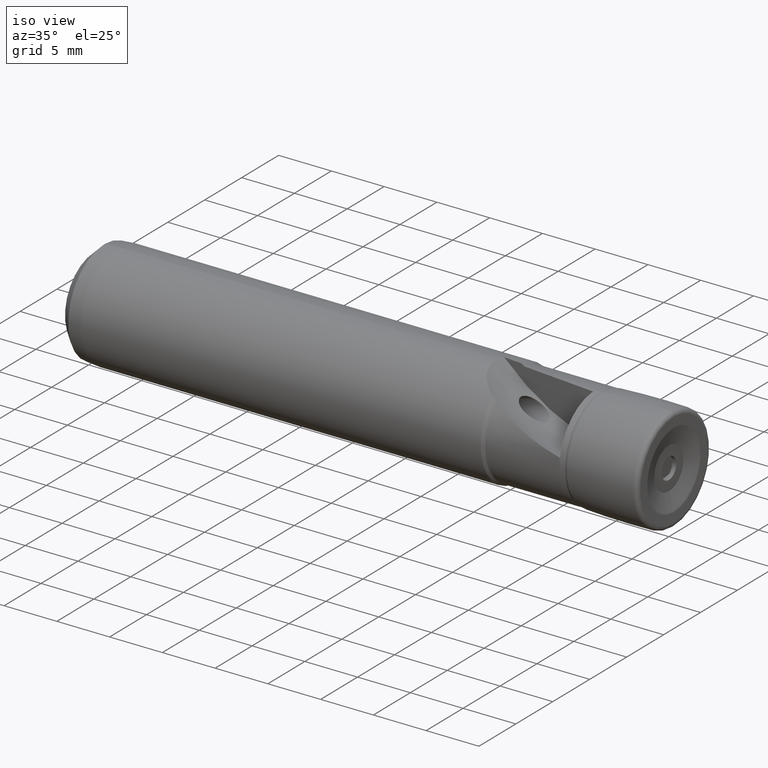
[diagram: clean part render]
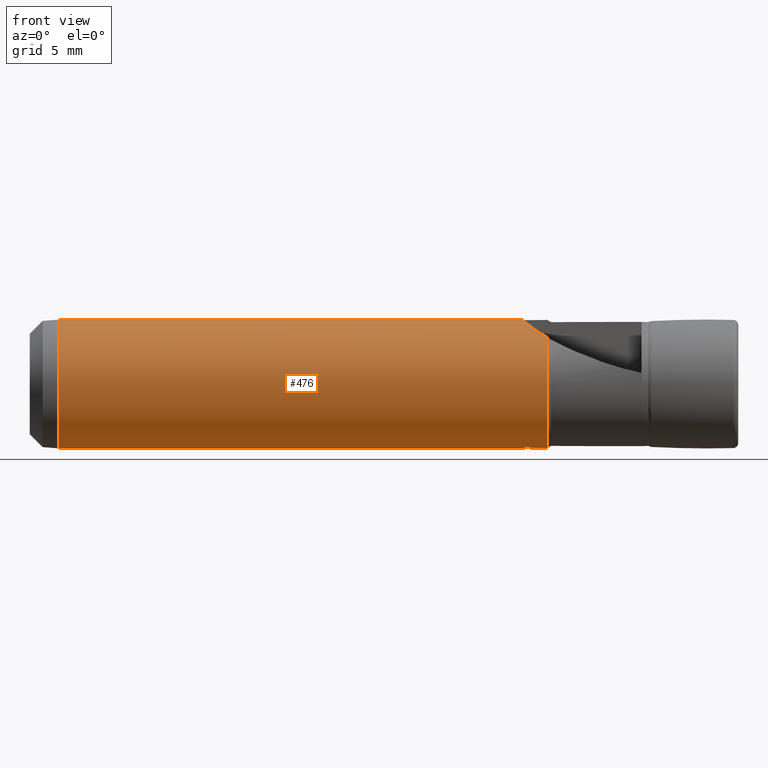
[diagram: tour spotlight — one face highlighted and labeled with its STEP entity id]
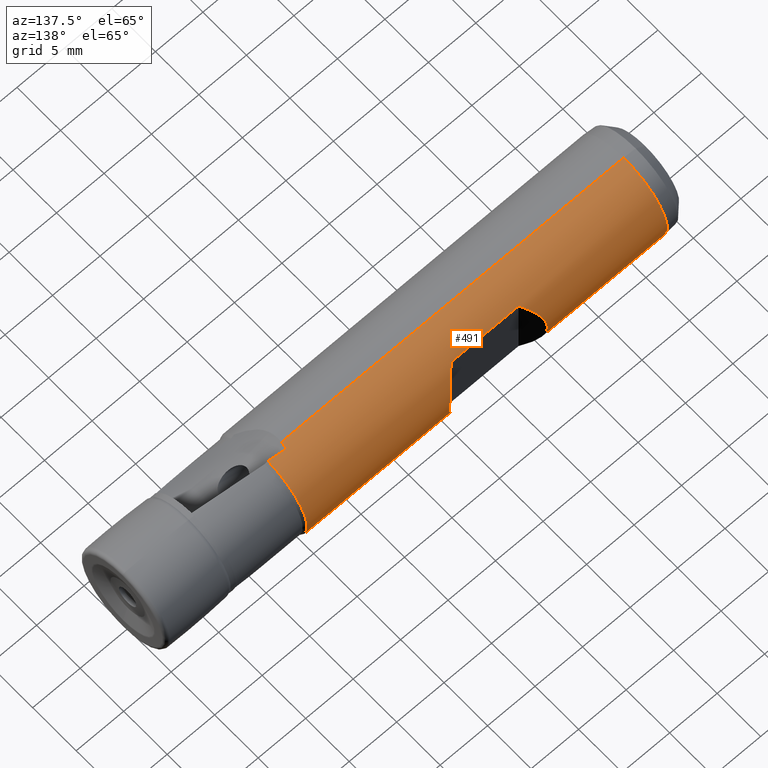
[diagram: tour spotlight — one face highlighted and labeled with its STEP entity id]
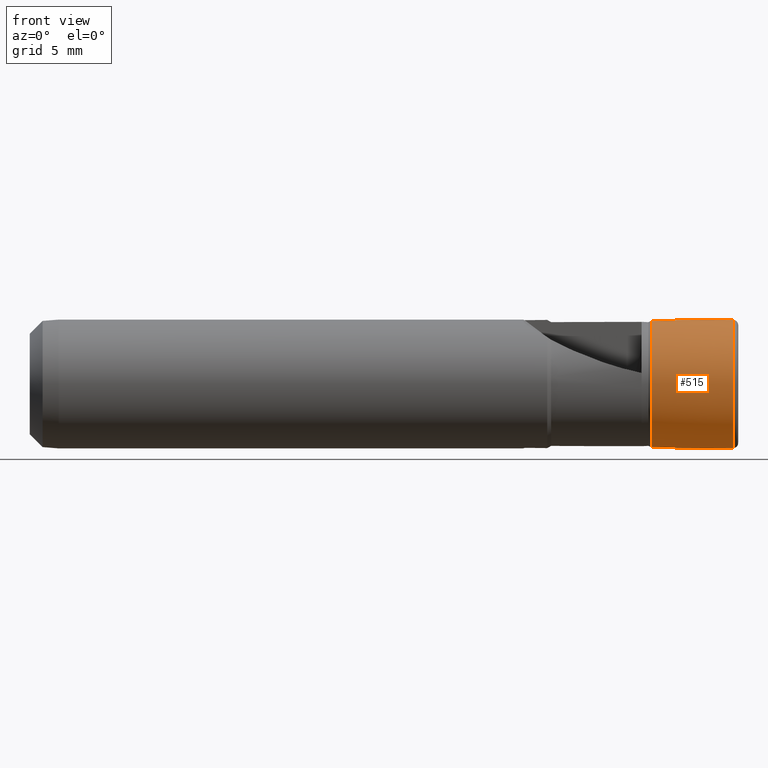
[diagram: tour spotlight — one face highlighted and labeled with its STEP entity id]
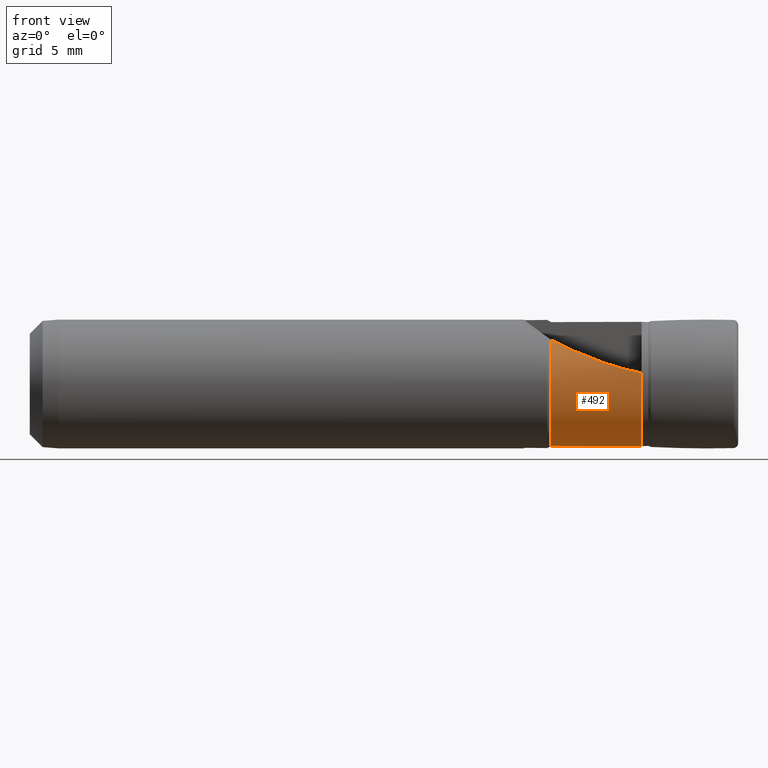
[diagram: tour spotlight — one face highlighted and labeled with its STEP entity id]
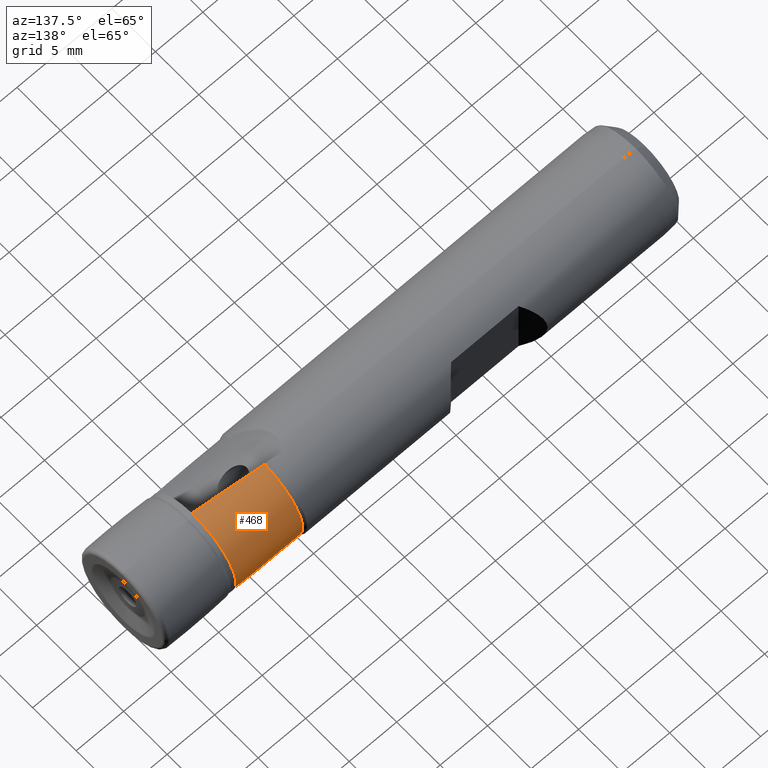
[diagram: tour spotlight — one face highlighted and labeled with its STEP entity id]
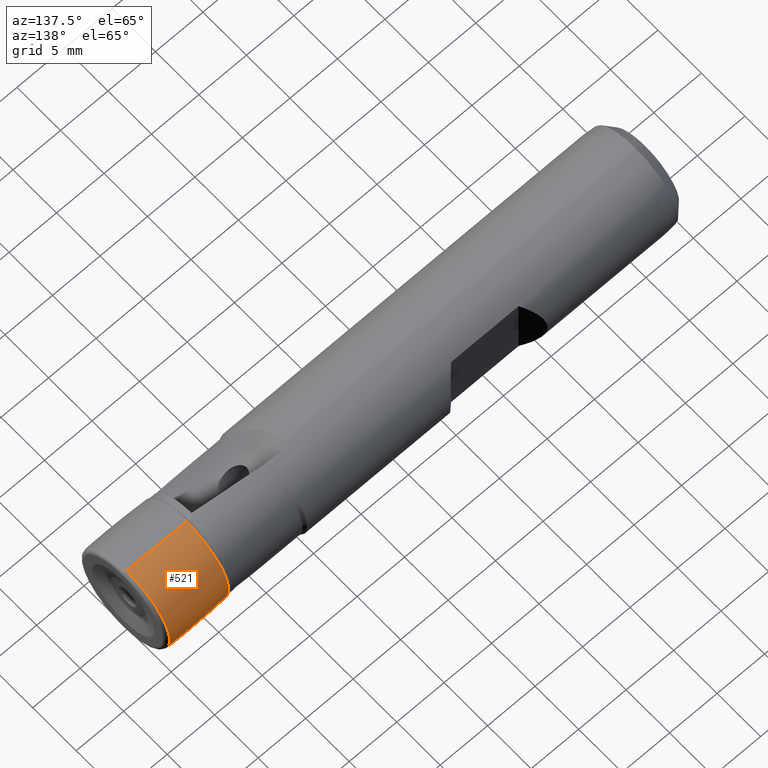
[diagram: tour spotlight — one face highlighted and labeled with its STEP entity id]
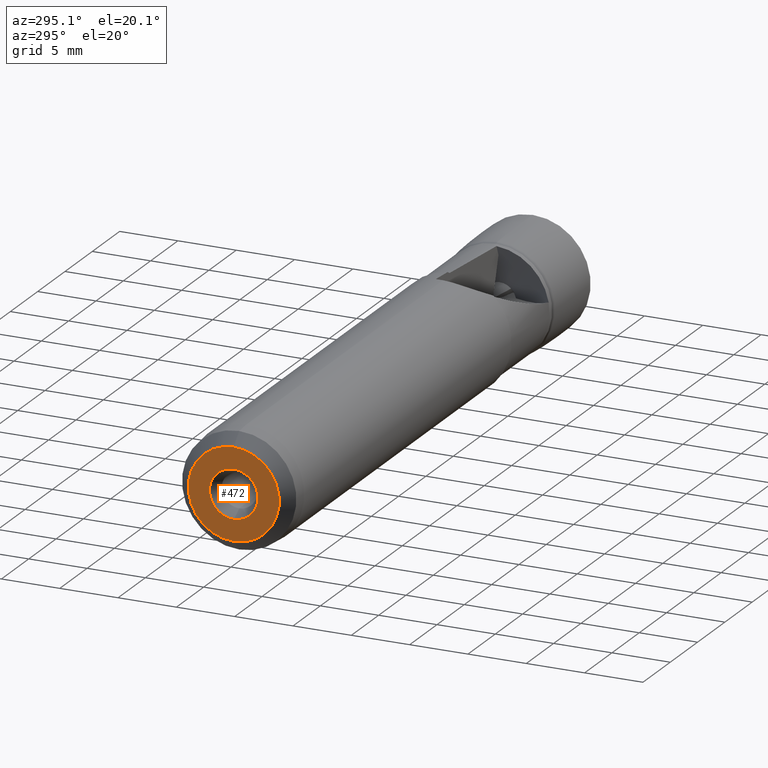
[diagram: tour spotlight — one face highlighted and labeled with its STEP entity id]
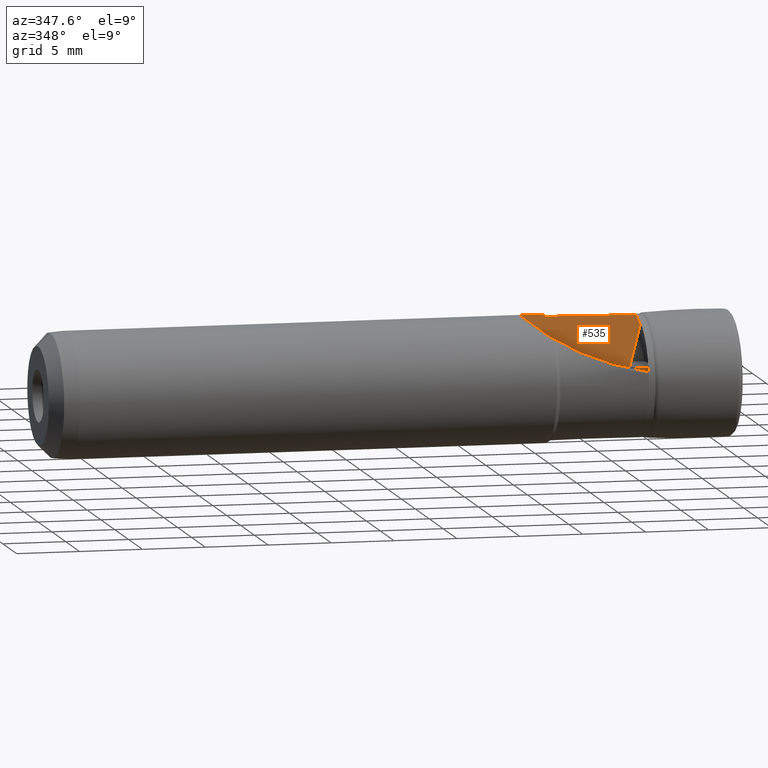
[diagram: tour spotlight — one face highlighted and labeled with its STEP entity id]
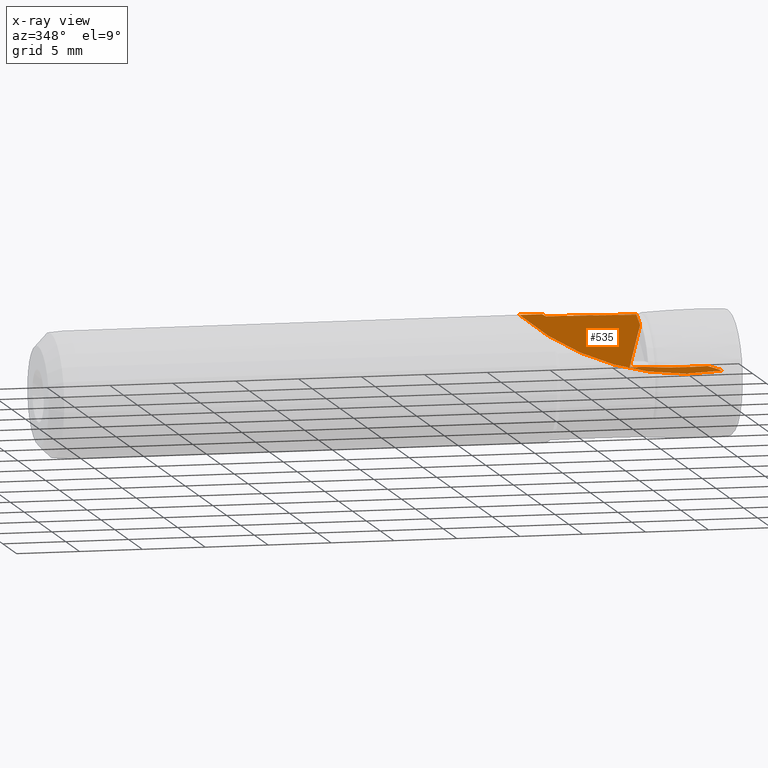
[diagram: x-ray of the same camera — body ghosted, this tour face saturated]
A machine part: a face-by-face anatomy tour. The part has 72 B-rep faces; the first image is the clean iso view, then the 8 largest visible faces are spotlighted one at a time (largest first), each with its STEP entity span.

Face 1 — front view, entity #476. In plain terms, the highlighted cylindrical surface (partial cylindrical patch) has radius 5 mm, axis along (1, -0, -0).
Definition (entity closure, byte-faithful):
#35 = EDGE_LOOP ( 'NONE', ( #2559, #2563, #2560, #2558, #2557, #2578, #2555, #2553 ) ) ;
#153 = VERTEX_POINT ( 'NONE', #979 ) ;
#161 = VERTEX_POINT ( 'NONE', #987 ) ;
#163 = VERTEX_POINT ( 'NONE', #989 ) ;
#168 = VERTEX_POINT ( 'NONE', #994 ) ;
#211 = VERTEX_POINT ( 'NONE', #1037 ) ;
#215 = VERTEX_POINT ( 'NONE', #1041 ) ;
#216 = VERTEX_POINT ( 'NONE', #1042 ) ;
#221 = VERTEX_POINT ( 'NONE', #1047 ) ;
#297 = AXIS2_PLACEMENT_3D ( 'NONE', #1953, #1954, #1955 ) ;
#309 = AXIS2_PLACEMENT_3D ( 'NONE', #1843, #1839, #1845 ) ;
#313 = CIRCLE ( 'NONE', #297, 4.999999999999995600 ) ;
#350 = EDGE_CURVE ( 'NONE', #161, #163, #1384, .T. ) ;
#356 = EDGE_CURVE ( 'NONE', #153, #168, #1414, .T. ) ;
#427 = EDGE_CURVE ( 'NONE', #211, #215, #1195, .T. ) ;
#430 = EDGE_CURVE ( 'NONE', #168, #211, #629, .T. ) ;
#446 = EDGE_CURVE ( 'NONE', #221, #163, #1175, .T. ) ;
#452 = EDGE_CURVE ( 'NONE', #216, #221, #1176, .T. ) ;
#461 = EDGE_CURVE ( 'NONE', #161, #153, #1283, .T. ) ;
#476 = ADVANCED_FACE ( 'NONE', ( #1842 ), #1841, .T. ) ;
#499 = EDGE_CURVE ( 'NONE', #215, #216, #313, .T. ) ;
#629 = B_SPLINE_CURVE_WITH_KNOTS ( 'NONE', 3,
 ( #1653, #1662, #1670, #1671 ),
 .UNSPECIFIED., .F., .F.,
 ( 4, 4 ),
 ( 0.001346858515786693300, 0.002030196299819929500 ),
 .UNSPECIFIED. ) ;
#979 = CARTESIAN_POINT ( 'NONE',  ( -52.24999999999996400, 0.0000000000000000000, -4.999999999999995600 ) ) ;
#987 = CARTESIAN_POINT ( 'NONE',  ( -52.24999999999996400, 6.123233995736761400E-016, 4.999999999999995600 ) ) ;
#989 = CARTESIAN_POINT ( 'NONE',  ( -16.20414531685863200, 7.175098985511016600E-014, 4.999999999999999100 ) ) ;
#994 = CARTESIAN_POINT ( 'NONE',  ( -16.20414531685863600, -7.113982745952536100E-014, -4.999999999999999100 ) ) ;
#1037 = CARTESIAN_POINT ( 'NONE',  ( -16.08015100946154500, -0.6745286124466840500, -4.954292194753108400 ) ) ;
#1041 = CARTESIAN_POINT ( 'NONE',  ( -14.32679491924310300, -0.4902434614358794400, -4.975908092852934700 ) ) ;
#1042 = CARTESIAN_POINT ( 'NONE',  ( -14.32679491924310800, -3.430299077992441600, 3.637725695475704200 ) ) ;
#1047 = CARTESIAN_POINT ( 'NONE',  ( -16.13224354872516000, -1.331012800178033500, 4.819585555393968200 ) ) ;
#1114 = CARTESIAN_POINT ( 'NONE',  ( -14.72365862748845400, -3.188104515926026000, 3.855813033448061600 ) ) ;
#1115 = CARTESIAN_POINT ( 'NONE',  ( -15.09460263889684100, -2.907586568762889500, 4.071516289851424600 ) ) ;
#1116 = CARTESIAN_POINT ( 'NONE',  ( -15.27196565482436200, -2.752474414805122100, 4.179036106910115400 ) ) ;
#1117 = CARTESIAN_POINT ( 'NONE',  ( -15.59574482208665600, -2.407891037067699800, 4.386629565010511400 ) ) ;
#1118 = CARTESIAN_POINT ( 'NONE',  ( -15.74085305431470500, -2.220458893502598800, 4.485731756782586300 ) ) ;
#1119 = CARTESIAN_POINT ( 'NONE',  ( -15.98332555359155400, -1.802001487320425300, 4.669584321033034300 ) ) ;
#1120 = CARTESIAN_POINT ( 'NONE',  ( -16.07772581079669600, -1.574734430628748700, 4.752277566754363700 ) ) ;
#1121 = CARTESIAN_POINT ( 'NONE',  ( -16.13224354872516000, -1.331012800178033500, 4.819585555393968200 ) ) ;
#1146 = CARTESIAN_POINT ( 'NONE',  ( -52.24999999999996400, 0.0000000000000000000, 0.0000000000000000000 ) ) ;
#1147 = DIRECTION ( 'NONE',  ( 1.000000000000000000, -0.0000000000000000000, -0.0000000000000000000 ) ) ;
#1148 = DIRECTION ( 'NONE',  ( 0.0000000000000000000, 0.0000000000000000000, -1.000000000000000000 ) ) ;
#1175 = B_SPLINE_CURVE_WITH_KNOTS ( 'NONE', 3,
 ( #1749, #1750, #1754, #1755, #1756, #1757 ),
 .UNSPECIFIED., .F., .F.,
 ( 4, 2, 4 ),
 ( 0.0000000000000000000, 0.0006734292578933646700, 0.001346858515786729300 ),
 .UNSPECIFIED. ) ;
#1176 = B_SPLINE_CURVE_WITH_KNOTS ( 'NONE', 3,
 ( #1791, #1790, #1114, #1115, #1116, #1117, #1118, #1119, #1120, #1121 ),
 .UNSPECIFIED., .F., .F.,
 ( 4, 2, 2, 2, 4 ),
 ( 0.0002621934704669767100, 0.001030916226422725200, 0.001799638982378473800, 0.002568361738334218800, 0.003337084494289963700 ),
 .UNSPECIFIED. ) ;
#1195 =( BOUNDED_CURVE ( )  B_SPLINE_CURVE ( 3, ( #1650, #1654, #1655, #1656 ),
 .UNSPECIFIED., .F., .T. ) 
 B_SPLINE_CURVE_WITH_KNOTS ( ( 4, 4 ),
 ( 4.577070665840139400, 4.614182505286455800 ),
 .UNSPECIFIED. ) 
 CURVE ( )  GEOMETRIC_REPRESENTATION_ITEM ( )  RATIONAL_B_SPLINE_CURVE ( ( 1.000000000000000000, 0.9998852292409754500, 0.9998852292409754500, 1.000000000000000000 ) ) 
 REPRESENTATION_ITEM ( '' )  );
#1225 = AXIS2_PLACEMENT_3D ( 'NONE', #1146, #1147, #1148 ) ;
#1253 = VECTOR ( 'NONE', #1388, 1000.000000000000000 ) ;
#1283 = CIRCLE ( 'NONE', #1225, 4.999999999999995600 ) ;
#1335 = VECTOR ( 'NONE', #1417, 1000.000000000000000 ) ;
#1352 = CARTESIAN_POINT ( 'NONE',  ( 0.0000000000000000000, 6.123233995736761400E-016, 4.999999999999995600 ) ) ;
#1384 = LINE ( 'NONE', #1352, #1253 ) ;
#1388 = DIRECTION ( 'NONE',  ( 1.000000000000000000, -0.0000000000000000000, -0.0000000000000000000 ) ) ;
#1414 = LINE ( 'NONE', #1416, #1335 ) ;
#1416 = CARTESIAN_POINT ( 'NONE',  ( 0.0000000000000000000, 0.0000000000000000000, -4.999999999999995600 ) ) ;
#1417 = DIRECTION ( 'NONE',  ( 1.000000000000000000, -0.0000000000000000000, -0.0000000000000000000 ) ) ;
#1650 = CARTESIAN_POINT ( 'NONE',  ( -16.08015100946154500, -0.6745286124466840500, -4.954292194753108400 ) ) ;
#1653 = CARTESIAN_POINT ( 'NONE',  ( -16.20414531685863600, -7.113982745952536100E-014, -4.999999999999999100 ) ) ;
#1654 = CARTESIAN_POINT ( 'NONE',  ( -15.49700467487551900, -0.6132374629020428400, -4.962637006167534900 ) ) ;
#1655 = CARTESIAN_POINT ( 'NONE',  ( -14.91248555910016700, -0.5518020282403132100, -4.969843132586770900 ) ) ;
#1656 = CARTESIAN_POINT ( 'NONE',  ( -14.32679491924310300, -0.4902434614358794400, -4.975908092852934700 ) ) ;
#1662 = CARTESIAN_POINT ( 'NONE',  ( -16.18015795417793300, -0.2282245108382799100, -4.999999999999993800 ) ) ;
#1670 = CARTESIAN_POINT ( 'NONE',  ( -16.13859210282029000, -0.4530169619172957400, -4.984451083328588400 ) ) ;
#1671 = CARTESIAN_POINT ( 'NONE',  ( -16.08015100946154500, -0.6745286124466840500, -4.954292194753108400 ) ) ;
#1749 = CARTESIAN_POINT ( 'NONE',  ( -16.13224354872516000, -1.331012800178033500, 4.819585555393968200 ) ) ;
#1750 = CARTESIAN_POINT ( 'NONE',  ( -16.18025757576846500, -1.116366019146429300, 4.878864016121847900 ) ) ;
#1754 = CARTESIAN_POINT ( 'NONE',  ( -16.20990254017045000, -0.8979177473825068500, 4.923825272863483700 ) ) ;
#1755 = CARTESIAN_POINT ( 'NONE',  ( -16.23385971963920200, -0.4534277419826008800, 4.984447299506152600 ) ) ;
#1756 = CARTESIAN_POINT ( 'NONE',  ( -16.22778485827739200, -0.2249152125903278700, 4.999999999999997300 ) ) ;
#1757 = CARTESIAN_POINT ( 'NONE',  ( -16.20414531685863200, 7.175098985511016600E-014, 4.999999999999999100 ) ) ;
#1790 = CARTESIAN_POINT ( 'NONE',  ( -14.52890922734718300, -3.314498357538239000, 3.746923347487079300 ) ) ;
#1791 = CARTESIAN_POINT ( 'NONE',  ( -14.32679491924310800, -3.430299077992441600, 3.637725695475704200 ) ) ;
#1839 = DIRECTION ( 'NONE',  ( 1.000000000000000000, -0.0000000000000000000, -0.0000000000000000000 ) ) ;
#1841 = CYLINDRICAL_SURFACE ( 'NONE', #309, 4.999999999999995600 ) ;
#1842 = FACE_OUTER_BOUND ( 'NONE', #35, .T. ) ;
#1843 = CARTESIAN_POINT ( 'NONE',  ( 0.0000000000000000000, 0.0000000000000000000, 0.0000000000000000000 ) ) ;
#1845 = DIRECTION ( 'NONE',  ( 0.0000000000000000000, 0.0000000000000000000, -1.000000000000000000 ) ) ;
#1953 = CARTESIAN_POINT ( 'NONE',  ( -14.32679491924310300, 0.0000000000000000000, 0.0000000000000000000 ) ) ;
#1954 = DIRECTION ( 'NONE',  ( -1.000000000000000000, 0.0000000000000000000, 0.0000000000000000000 ) ) ;
#1955 = DIRECTION ( 'NONE',  ( 0.0000000000000000000, 0.0000000000000000000, 1.000000000000000000 ) ) ;
#2553 = ORIENTED_EDGE ( 'NONE', *, *, #446, .T. ) ;
#2555 = ORIENTED_EDGE ( 'NONE', *, *, #452, .T. ) ;
#2557 = ORIENTED_EDGE ( 'NONE', *, *, #427, .T. ) ;
#2558 = ORIENTED_EDGE ( 'NONE', *, *, #430, .T. ) ;
#2559 = ORIENTED_EDGE ( 'NONE', *, *, #350, .F. ) ;
#2560 = ORIENTED_EDGE ( 'NONE', *, *, #356, .T. ) ;
#2563 = ORIENTED_EDGE ( 'NONE', *, *, #461, .T. ) ;
#2578 = ORIENTED_EDGE ( 'NONE', *, *, #499, .T. ) ;

Face 2 — auxiliary view, entity #491. In plain terms, the highlighted cylindrical surface (partial cylindrical patch) has radius 5 mm, axis along (1, -0, -0).
Definition (entity closure, byte-faithful):
#85 = EDGE_LOOP ( 'NONE', ( #703, #698, #712, #717, #727, #713, #705, #702 ) ) ;
#87 = EDGE_LOOP ( 'NONE', ( #701, #714, #721, #723 ) ) ;
#151 = VERTEX_POINT ( 'NONE', #977 ) ;
#153 = VERTEX_POINT ( 'NONE', #979 ) ;
#155 = VERTEX_POINT ( 'NONE', #981 ) ;
#156 = VERTEX_POINT ( 'NONE', #982 ) ;
#158 = VERTEX_POINT ( 'NONE', #984 ) ;
#161 = VERTEX_POINT ( 'NONE', #987 ) ;
#163 = VERTEX_POINT ( 'NONE', #989 ) ;
#164 = VERTEX_POINT ( 'NONE', #990 ) ;
#165 = VERTEX_POINT ( 'NONE', #991 ) ;
#166 = VERTEX_POINT ( 'NONE', #992 ) ;
#167 = VERTEX_POINT ( 'NONE', #993 ) ;
#168 = VERTEX_POINT ( 'NONE', #994 ) ;
#312 = AXIS2_PLACEMENT_3D ( 'NONE', #1917, #1913, #1912 ) ;
#326 = B_SPLINE_CURVE_WITH_KNOTS ( 'NONE', 3,
 ( #1383, #1382, #1390, #1391 ),
 .UNSPECIFIED., .F., .F.,
 ( 4, 4 ),
 ( 0.001346858515786729300, 0.002030196299819931200 ),
 .UNSPECIFIED. ) ;
#327 = B_SPLINE_CURVE_WITH_KNOTS ( 'NONE', 3,
 ( #1396, #1397, #1402, #1403, #1404, #1405, #1406, #1407, #1408, #1409 ),
 .UNSPECIFIED., .F., .F.,
 ( 4, 2, 2, 2, 4 ),
 ( 2.528275725669959200E-007, 0.001538951075900114300, 0.002308300200063890500, 0.002692974762145776500, 0.003077649324227663000 ),
 .UNSPECIFIED. ) ;
#328 = B_SPLINE_CURVE_WITH_KNOTS ( 'NONE', 3,
 ( #1392, #1401, #1410, #1411, #1412, #1413 ),
 .UNSPECIFIED., .F., .F.,
 ( 4, 2, 4 ),
 ( 0.0000000000000000000, 0.0006734292578933466700, 0.001346858515786693300 ),
 .UNSPECIFIED. ) ;
#345 = EDGE_CURVE ( 'NONE', #151, #156, #1189, .T. ) ;
#346 = EDGE_CURVE ( 'NONE', #155, #151, #1370, .T. ) ;
#347 = EDGE_CURVE ( 'NONE', #158, #155, #1190, .T. ) ;
#348 = EDGE_CURVE ( 'NONE', #156, #158, #1376, .T. ) ;
#349 = EDGE_CURVE ( 'NONE', #153, #161, #1232, .T. ) ;
#350 = EDGE_CURVE ( 'NONE', #161, #163, #1384, .T. ) ;
#351 = EDGE_CURVE ( 'NONE', #163, #164, #326, .T. ) ;
#352 = EDGE_CURVE ( 'NONE', #164, #165, #1192, .T. ) ;
#353 = EDGE_CURVE ( 'NONE', #165, #166, #1330, .T. ) ;
#354 = EDGE_CURVE ( 'NONE', #166, #167, #327, .T. ) ;
#355 = EDGE_CURVE ( 'NONE', #167, #168, #328, .T. ) ;
#356 = EDGE_CURVE ( 'NONE', #153, #168, #1414, .T. ) ;
#491 = ADVANCED_FACE ( 'NONE', ( #1914, #1916 ), #1915, .T. ) ;
#698 = ORIENTED_EDGE ( 'NONE', *, *, #350, .T. ) ;
#701 = ORIENTED_EDGE ( 'NONE', *, *, #345, .F. ) ;
#702 = ORIENTED_EDGE ( 'NONE', *, *, #356, .F. ) ;
#703 = ORIENTED_EDGE ( 'NONE', *, *, #349, .T. ) ;
#705 = ORIENTED_EDGE ( 'NONE', *, *, #355, .T. ) ;
#712 = ORIENTED_EDGE ( 'NONE', *, *, #351, .T. ) ;
#713 = ORIENTED_EDGE ( 'NONE', *, *, #354, .T. ) ;
#714 = ORIENTED_EDGE ( 'NONE', *, *, #346, .F. ) ;
#717 = ORIENTED_EDGE ( 'NONE', *, *, #352, .T. ) ;
#721 = ORIENTED_EDGE ( 'NONE', *, *, #347, .F. ) ;
#723 = ORIENTED_EDGE ( 'NONE', *, *, #348, .F. ) ;
#727 = ORIENTED_EDGE ( 'NONE', *, *, #353, .T. ) ;
#977 = CARTESIAN_POINT ( 'NONE',  ( -30.95000000000000600, 3.400000000000003000, 3.666060555964668800 ) ) ;
#979 = CARTESIAN_POINT ( 'NONE',  ( -52.24999999999996400, 0.0000000000000000000, -4.999999999999995600 ) ) ;
#981 = CARTESIAN_POINT ( 'NONE',  ( -38.04999999999999700, 3.399999999999999000, 3.666060555964667100 ) ) ;
#982 = CARTESIAN_POINT ( 'NONE',  ( -30.95000000000000600, 3.400000000000003000, -3.666060555964661700 ) ) ;
#984 = CARTESIAN_POINT ( 'NONE',  ( -38.04999999999999700, 3.400000000000003900, -3.666060555964665300 ) ) ;
#987 = CARTESIAN_POINT ( 'NONE',  ( -52.24999999999996400, 6.123233995736761400E-016, 4.999999999999995600 ) ) ;
#989 = CARTESIAN_POINT ( 'NONE',  ( -16.20414531685863200, 7.175098985511016600E-014, 4.999999999999999100 ) ) ;
#990 = CARTESIAN_POINT ( 'NONE',  ( -16.08015100946152400, 0.6745286124466470800, 4.954292194753096000 ) ) ;
#991 = CARTESIAN_POINT ( 'NONE',  ( -14.32679491924310300, 0.4902434614358449600, 4.975908092852938200 ) ) ;
#992 = CARTESIAN_POINT ( 'NONE',  ( -14.32679491924310800, 3.430299077992414500, -3.637725695475729500 ) ) ;
#993 = CARTESIAN_POINT ( 'NONE',  ( -16.13224354872516700, 1.331012800177998800, -4.819585555393978800 ) ) ;
#994 = CARTESIAN_POINT ( 'NONE',  ( -16.20414531685863600, -7.113982745952536100E-014, -4.999999999999999100 ) ) ;
#1189 =( BOUNDED_CURVE ( )  B_SPLINE_CURVE ( 3, ( #1366, #1371, #1372, #1373 ),
 .UNSPECIFIED., .F., .T. ) 
 B_SPLINE_CURVE_WITH_KNOTS ( ( 4, 4 ),
 ( 5.460151615044611400, 7.106218999314560100 ),
 .UNSPECIFIED. ) 
 CURVE ( )  GEOMETRIC_REPRESENTATION_ITEM ( )  RATIONAL_B_SPLINE_CURVE ( ( 1.000000000000000000, 0.7866666666666675100, 0.7866666666666675100, 1.000000000000000000 ) ) 
 REPRESENTATION_ITEM ( '' )  );
#1190 =( BOUNDED_CURVE ( )  B_SPLINE_CURVE ( 3, ( #1356, #1377, #1378, #1379 ),
 .UNSPECIFIED., .F., .T. ) 
 B_SPLINE_CURVE_WITH_KNOTS ( ( 4, 4 ),
 ( 2.318558961454818300, 3.964626345724768400 ),
 .UNSPECIFIED. ) 
 CURVE ( )  GEOMETRIC_REPRESENTATION_ITEM ( )  RATIONAL_B_SPLINE_CURVE ( ( 1.000000000000000000, 0.7866666666666670700, 0.7866666666666670700, 1.000000000000000000 ) ) 
 REPRESENTATION_ITEM ( '' )  );
#1192 =( BOUNDED_CURVE ( )  B_SPLINE_CURVE ( 3, ( #1389, #1393, #1394, #1395 ),
 .UNSPECIFIED., .F., .T. ) 
 B_SPLINE_CURVE_WITH_KNOTS ( ( 4, 4 ),
 ( 4.577070665840139400, 4.614182505286455800 ),
 .UNSPECIFIED. ) 
 CURVE ( )  GEOMETRIC_REPRESENTATION_ITEM ( )  RATIONAL_B_SPLINE_CURVE ( ( 1.000000000000000000, 0.9998852292409754500, 0.9998852292409754500, 1.000000000000000000 ) ) 
 REPRESENTATION_ITEM ( '' )  );
#1232 = CIRCLE ( 'NONE', #1252, 4.999999999999995600 ) ;
#1241 = VECTOR ( 'NONE', #1381, 1000.000000000000000 ) ;
#1247 = AXIS2_PLACEMENT_3D ( 'NONE', #1398, #1399, #1400 ) ;
#1252 = AXIS2_PLACEMENT_3D ( 'NONE', #1385, #1386, #1387 ) ;
#1253 = VECTOR ( 'NONE', #1388, 1000.000000000000000 ) ;
#1307 = VECTOR ( 'NONE', #1375, 1000.000000000000000 ) ;
#1330 = CIRCLE ( 'NONE', #1247, 4.999999999999995600 ) ;
#1335 = VECTOR ( 'NONE', #1417, 1000.000000000000000 ) ;
#1352 = CARTESIAN_POINT ( 'NONE',  ( 0.0000000000000000000, 6.123233995736761400E-016, 4.999999999999995600 ) ) ;
#1356 = CARTESIAN_POINT ( 'NONE',  ( -38.04999999999999700, 3.400000000000003900, -3.666060555964665300 ) ) ;
#1366 = CARTESIAN_POINT ( 'NONE',  ( -30.95000000000000600, 3.400000000000003000, 3.666060555964668800 ) ) ;
#1370 = LINE ( 'NONE', #1374, #1307 ) ;
#1371 = CARTESIAN_POINT ( 'NONE',  ( -28.67203389830511600, 5.677966101694906300, 1.553415489815537700 ) ) ;
#1372 = CARTESIAN_POINT ( 'NONE',  ( -28.67203389830511600, 5.677966101694906300, -1.553415489815531500 ) ) ;
#1373 = CARTESIAN_POINT ( 'NONE',  ( -30.95000000000000600, 3.400000000000003000, -3.666060555964661700 ) ) ;
#1374 = CARTESIAN_POINT ( 'NONE',  ( 4.153563252338835800E-016, 3.399999999999999000, 3.666060555964667100 ) ) ;
#1375 = DIRECTION ( 'NONE',  ( 1.000000000000000000, -0.0000000000000000000, -0.0000000000000000000 ) ) ;
#1376 = LINE ( 'NONE', #1380, #1241 ) ;
#1377 = CARTESIAN_POINT ( 'NONE',  ( -40.32796610169489800, 5.677966101694908100, -1.553415489815534100 ) ) ;
#1378 = CARTESIAN_POINT ( 'NONE',  ( -40.32796610169490500, 5.677966101694908100, 1.553415489815535500 ) ) ;
#1379 = CARTESIAN_POINT ( 'NONE',  ( -38.04999999999999700, 3.399999999999999000, 3.666060555964667100 ) ) ;
#1380 = CARTESIAN_POINT ( 'NONE',  ( 4.153563252338835800E-016, 3.399999999999999000, -3.666060555964667100 ) ) ;
#1381 = DIRECTION ( 'NONE',  ( -1.000000000000000000, 0.0000000000000000000, 0.0000000000000000000 ) ) ;
#1382 = CARTESIAN_POINT ( 'NONE',  ( -16.18015795417792500, 0.2282245108382672000, 4.999999999999993800 ) ) ;
#1383 = CARTESIAN_POINT ( 'NONE',  ( -16.20414531685863200, 7.175098985511016600E-014, 4.999999999999999100 ) ) ;
#1384 = LINE ( 'NONE', #1352, #1253 ) ;
#1385 = CARTESIAN_POINT ( 'NONE',  ( -52.24999999999996400, 0.0000000000000000000, 0.0000000000000000000 ) ) ;
#1386 = DIRECTION ( 'NONE',  ( 1.000000000000000000, -0.0000000000000000000, -0.0000000000000000000 ) ) ;
#1387 = DIRECTION ( 'NONE',  ( 0.0000000000000000000, 0.0000000000000000000, -1.000000000000000000 ) ) ;
#1388 = DIRECTION ( 'NONE',  ( 1.000000000000000000, -0.0000000000000000000, -0.0000000000000000000 ) ) ;
#1389 = CARTESIAN_POINT ( 'NONE',  ( -16.08015100946152400, 0.6745286124466470800, 4.954292194753096000 ) ) ;
#1390 = CARTESIAN_POINT ( 'NONE',  ( -16.13859210282028700, 0.4530169619172691500, 4.984451083328591100 ) ) ;
#1391 = CARTESIAN_POINT ( 'NONE',  ( -16.08015100946152400, 0.6745286124466470800, 4.954292194753096000 ) ) ;
#1392 = CARTESIAN_POINT ( 'NONE',  ( -16.13224354872516700, 1.331012800177998800, -4.819585555393978800 ) ) ;
#1393 = CARTESIAN_POINT ( 'NONE',  ( -15.49700467487551900, 0.6132374629020083100, 4.962637006167538400 ) ) ;
#1394 = CARTESIAN_POINT ( 'NONE',  ( -14.91248555910016700, 0.5518020282402784600, 4.969843132586774500 ) ) ;
#1395 = CARTESIAN_POINT ( 'NONE',  ( -14.32679491924310300, 0.4902434614358449600, 4.975908092852938200 ) ) ;
#1396 = CARTESIAN_POINT ( 'NONE',  ( -14.32679491924310800, 3.430299077992414500, -3.637725695475729500 ) ) ;
#1397 = CARTESIAN_POINT ( 'NONE',  ( -14.73252039428132300, 3.197840016795183700, -3.856929717452982400 ) ) ;
#1398 = CARTESIAN_POINT ( 'NONE',  ( -14.32679491924310300, 0.0000000000000000000, 0.0000000000000000000 ) ) ;
#1399 = DIRECTION ( 'NONE',  ( -1.000000000000000000, 0.0000000000000000000, 0.0000000000000000000 ) ) ;
#1400 = DIRECTION ( 'NONE',  ( 0.0000000000000000000, 0.0000000000000000000, 1.000000000000000000 ) ) ;
#1401 = CARTESIAN_POINT ( 'NONE',  ( -16.18025757576847200, 1.116366019146399500, -4.878864016121855100 ) ) ;
#1402 = CARTESIAN_POINT ( 'NONE',  ( -15.11025223861971900, 2.924746680965302700, -4.075321413190226700 ) ) ;
#1403 = CARTESIAN_POINT ( 'NONE',  ( -15.59655985713831000, 2.406939366117563300, -4.387167631854251400 ) ) ;
#1404 = CARTESIAN_POINT ( 'NONE',  ( -15.74141621539966500, 2.219511740276365800, -4.486154469064594300 ) ) ;
#1405 = CARTESIAN_POINT ( 'NONE',  ( -15.92253105975762200, 1.906907831349883700, -4.623489601385596600 ) ) ;
#1406 = CARTESIAN_POINT ( 'NONE',  ( -15.97700991748882200, 1.796619741518378000, -4.667620966039352800 ) ) ;
#1407 = CARTESIAN_POINT ( 'NONE',  ( -16.06808422984621700, 1.569624358845020700, -4.748769035270513000 ) ) ;
#1408 = CARTESIAN_POINT ( 'NONE',  ( -16.10508231251200000, 1.452437148044615900, -4.786052099165107900 ) ) ;
#1409 = CARTESIAN_POINT ( 'NONE',  ( -16.13224354872516700, 1.331012800177998800, -4.819585555393978800 ) ) ;
#1410 = CARTESIAN_POINT ( 'NONE',  ( -16.20990254017045700, 0.8979177473824826400, -4.923825272863488100 ) ) ;
#1411 = CARTESIAN_POINT ( 'NONE',  ( -16.23385971963920900, 0.4534277419825887800, -4.984447299506153500 ) ) ;
#1412 = CARTESIAN_POINT ( 'NONE',  ( -16.22778485827739600, 0.2249152125903211300, -4.999999999999997300 ) ) ;
#1413 = CARTESIAN_POINT ( 'NONE',  ( -16.20414531685863600, -7.113982745952536100E-014, -4.999999999999999100 ) ) ;
#1414 = LINE ( 'NONE', #1416, #1335 ) ;
#1416 = CARTESIAN_POINT ( 'NONE',  ( 0.0000000000000000000, 0.0000000000000000000, -4.999999999999995600 ) ) ;
#1417 = DIRECTION ( 'NONE',  ( 1.000000000000000000, -0.0000000000000000000, -0.0000000000000000000 ) ) ;
#1912 = DIRECTION ( 'NONE',  ( 0.0000000000000000000, 0.0000000000000000000, -1.000000000000000000 ) ) ;
#1913 = DIRECTION ( 'NONE',  ( 1.000000000000000000, -0.0000000000000000000, -0.0000000000000000000 ) ) ;
#1914 = FACE_BOUND ( 'NONE', #87, .T. ) ;
#1915 = CYLINDRICAL_SURFACE ( 'NONE', #312, 4.999999999999995600 ) ;
#1916 = FACE_OUTER_BOUND ( 'NONE', #85, .T. ) ;
#1917 = CARTESIAN_POINT ( 'NONE',  ( 0.0000000000000000000, 0.0000000000000000000, 0.0000000000000000000 ) ) ;

Face 3 — front view, entity #515. In plain terms, the highlighted toroidal blend (fillet) surface has major radius 81.0601 mm and minor (blend) radius 86.0601 mm.
Definition (entity closure, byte-faithful):
#7 = CARTESIAN_POINT ( 'NONE',  ( 0.1118451480246774600, 6.095390697323002600E-016, 4.977264221461119600 ) ) ;
#60 = EDGE_LOOP ( 'NONE', ( #802, #791, #780, #794 ) ) ;
#73 = CARTESIAN_POINT ( 'NONE',  ( -6.198636738067707900, 0.0000000000000000000, -4.890880491738888800 ) ) ;
#103 = VERTEX_POINT ( 'NONE', #7 ) ;
#108 = VERTEX_POINT ( 'NONE', #728 ) ;
#109 = VERTEX_POINT ( 'NONE', #725 ) ;
#110 = VERTEX_POINT ( 'NONE', #73 ) ;
#502 = EDGE_CURVE ( 'NONE', #109, #110, #2533, .T. ) ;
#505 = EDGE_CURVE ( 'NONE', #103, #108, #2536, .T. ) ;
#515 = ADVANCED_FACE ( 'NONE', ( #2009 ), #2541, .T. ) ;
#643 = AXIS2_PLACEMENT_3D ( 'NONE', #2015, #2012, #2017 ) ;
#725 = CARTESIAN_POINT ( 'NONE',  ( -6.198636738067707900, 5.989601139220262600E-016, 4.890880491738888800 ) ) ;
#728 = CARTESIAN_POINT ( 'NONE',  ( 0.1118451480246774600, 0.0000000000000000000, -4.977264221461119600 ) ) ;
#780 = ORIENTED_EDGE ( 'NONE', *, *, #1198, .T. ) ;
#791 = ORIENTED_EDGE ( 'NONE', *, *, #502, .T. ) ;
#794 = ORIENTED_EDGE ( 'NONE', *, *, #505, .F. ) ;
#802 = ORIENTED_EDGE ( 'NONE', *, *, #1201, .F. ) ;
#1198 = EDGE_CURVE ( 'NONE', #110, #108, #2456, .T. ) ;
#1201 = EDGE_CURVE ( 'NONE', #109, #103, #2455, .T. ) ;
#1962 = CARTESIAN_POINT ( 'NONE',  ( -6.198636738067707900, 0.0000000000000000000, 0.0000000000000000000 ) ) ;
#1963 = DIRECTION ( 'NONE',  ( 1.000000000000000000, -0.0000000000000000000, -0.0000000000000000000 ) ) ;
#1964 = DIRECTION ( 'NONE',  ( 0.0000000000000000000, 0.0000000000000000000, -1.000000000000000000 ) ) ;
#1974 = CARTESIAN_POINT ( 'NONE',  ( 0.1118451480246776100, 0.0000000000000000000, 0.0000000000000000000 ) ) ;
#1975 = DIRECTION ( 'NONE',  ( 1.000000000000000000, -0.0000000000000000000, -0.0000000000000000000 ) ) ;
#1976 = DIRECTION ( 'NONE',  ( 0.0000000000000000000, 0.0000000000000000000, -1.000000000000000000 ) ) ;
#2009 = FACE_OUTER_BOUND ( 'NONE', #60, .T. ) ;
#2012 = DIRECTION ( 'NONE',  ( 1.000000000000000000, -0.0000000000000000000, -0.0000000000000000000 ) ) ;
#2015 = CARTESIAN_POINT ( 'NONE',  ( -1.866227419194482300, 0.0000000000000000000, 0.0000000000000000000 ) ) ;
#2017 = DIRECTION ( 'NONE',  ( 0.0000000000000000000, 0.0000000000000000000, -1.000000000000000000 ) ) ;
#2328 = CARTESIAN_POINT ( 'NONE',  ( -1.866227419194482300, 0.0000000000000000000, 81.06012743569228000 ) ) ;
#2329 = DIRECTION ( 'NONE',  ( -0.0000000000000000000, -1.000000000000000000, -0.0000000000000000000 ) ) ;
#2330 = DIRECTION ( 'NONE',  ( 0.0000000000000000000, 0.0000000000000000000, -1.000000000000000000 ) ) ;
#2335 = CARTESIAN_POINT ( 'NONE',  ( -1.866227419194482300, -9.927002560259710500E-015, -81.06012743569228000 ) ) ;
#2336 = DIRECTION ( 'NONE',  ( 0.0000000000000000000, 1.000000000000000000, -1.224646799147353200E-016 ) ) ;
#2337 = DIRECTION ( 'NONE',  ( 0.0000000000000000000, 1.224646799147353200E-016, 1.000000000000000000 ) ) ;
#2455 = CIRCLE ( 'NONE', #2464, 86.06012743569228000 ) ;
#2456 = CIRCLE ( 'NONE', #2459, 86.06012743569228000 ) ;
#2459 = AXIS2_PLACEMENT_3D ( 'NONE', #2328, #2329, #2330 ) ;
#2464 = AXIS2_PLACEMENT_3D ( 'NONE', #2335, #2336, #2337 ) ;
#2532 = AXIS2_PLACEMENT_3D ( 'NONE', #1974, #1975, #1976 ) ;
#2533 = CIRCLE ( 'NONE', #2549, 4.890880491738886200 ) ;
#2536 = CIRCLE ( 'NONE', #2532, 4.977264221461131100 ) ;
#2541 = TOROIDAL_SURFACE ( 'NONE', #643, -81.06012743569228000, 86.06012743569228000 ) ;
#2549 = AXIS2_PLACEMENT_3D ( 'NONE', #1962, #1963, #1964 ) ;

Face 4 — front view, entity #492. In plain terms, the highlighted cylindrical surface (partial cylindrical patch) has radius 4.8275 mm, axis along (1, -0, -0).
Definition (entity closure, byte-faithful):
#74 = CARTESIAN_POINT ( 'NONE',  ( -7.000000000000000000, 0.0000000000000000000, -4.827499999999999700 ) ) ;
#88 = EDGE_LOOP ( 'NONE', ( #699, #708, #711, #694, #720 ) ) ;
#111 = VERTEX_POINT ( 'NONE', #74 ) ;
#148 = VERTEX_POINT ( 'NONE', #974 ) ;
#150 = VERTEX_POINT ( 'NONE', #976 ) ;
#152 = VERTEX_POINT ( 'NONE', #978 ) ;
#154 = VERTEX_POINT ( 'NONE', #980 ) ;
#314 = AXIS2_PLACEMENT_3D ( 'NONE', #1921, #1918, #1922 ) ;
#325 = B_SPLINE_CURVE_WITH_KNOTS ( 'NONE', 3,
 ( #1354, #1355, #1360, #1361, #1362, #1363, #1364, #1365 ),
 .UNSPECIFIED., .F., .F.,
 ( 4, 2, 2, 4 ),
 ( 2.466636345148879400E-007, 0.001911983700122366200, 0.003823720736610217300, 0.007647194809585922100 ),
 .UNSPECIFIED. ) ;
#340 = EDGE_CURVE ( 'NONE', #150, #152, #1188, .T. ) ;
#341 = EDGE_CURVE ( 'NONE', #150, #111, #1347, .T. ) ;
#342 = EDGE_CURVE ( 'NONE', #154, #111, #1291, .T. ) ;
#343 = EDGE_CURVE ( 'NONE', #148, #154, #325, .T. ) ;
#344 = EDGE_CURVE ( 'NONE', #148, #152, #1273, .T. ) ;
#492 = ADVANCED_FACE ( 'NONE', ( #1920 ), #1919, .T. ) ;
#694 = ORIENTED_EDGE ( 'NONE', *, *, #343, .F. ) ;
#699 = ORIENTED_EDGE ( 'NONE', *, *, #340, .F. ) ;
#708 = ORIENTED_EDGE ( 'NONE', *, *, #341, .T. ) ;
#711 = ORIENTED_EDGE ( 'NONE', *, *, #342, .F. ) ;
#720 = ORIENTED_EDGE ( 'NONE', *, *, #344, .T. ) ;
#974 = CARTESIAN_POINT ( 'NONE',  ( -14.02801615493746800, -3.400176573672003300, 3.426887146938475400 ) ) ;
#976 = CARTESIAN_POINT ( 'NONE',  ( -9.662439955841929200, 0.0000000000000000000, -4.827499999999998800 ) ) ;
#978 = CARTESIAN_POINT ( 'NONE',  ( -14.02801615493746300, -0.4588405478999155200, -4.805644764399766600 ) ) ;
#980 = CARTESIAN_POINT ( 'NONE',  ( -6.999999999999995600, -4.751992394558641300, 0.8504848805574581900 ) ) ;
#1110 = CARTESIAN_POINT ( 'NONE',  ( -9.662439955841929200, 0.0000000000000000000, -4.827499999999998800 ) ) ;
#1188 =( BOUNDED_CURVE ( )  B_SPLINE_CURVE ( 3, ( #1110, #1348, #1349, #1350 ),
 .UNSPECIFIED., .F., .T. ) 
 B_SPLINE_CURVE_WITH_KNOTS ( ( 4, 4 ),
 ( 1.570796326794896800, 1.665987260166693200 ),
 .UNSPECIFIED. ) 
 CURVE ( )  GEOMETRIC_REPRESENTATION_ITEM ( )  RATIONAL_B_SPLINE_CURVE ( ( 1.000000000000000000, 0.9992450330538030800, 0.9992450330538030800, 1.000000000000000000 ) ) 
 REPRESENTATION_ITEM ( '' )  );
#1246 = AXIS2_PLACEMENT_3D ( 'NONE', #1367, #1368, #1369 ) ;
#1257 = AXIS2_PLACEMENT_3D ( 'NONE', #1357, #1358, #1359 ) ;
#1273 = CIRCLE ( 'NONE', #1246, 4.827499999999997900 ) ;
#1291 = CIRCLE ( 'NONE', #1257, 4.827499999999999700 ) ;
#1298 = VECTOR ( 'NONE', #1353, 1000.000000000000000 ) ;
#1347 = LINE ( 'NONE', #1351, #1298 ) ;
#1348 = CARTESIAN_POINT ( 'NONE',  ( -11.12038252183764800, -0.1532359384602382800, -4.827499999999999700 ) ) ;
#1349 = CARTESIAN_POINT ( 'NONE',  ( -12.57667404016319100, -0.3062983448177154000, -4.820209417317646400 ) ) ;
#1350 = CARTESIAN_POINT ( 'NONE',  ( -14.02801615493746300, -0.4588405478999155200, -4.805644764399766600 ) ) ;
#1351 = CARTESIAN_POINT ( 'NONE',  ( 0.0000000000000000000, 0.0000000000000000000, -4.827499999999998800 ) ) ;
#1353 = DIRECTION ( 'NONE',  ( 1.000000000000000000, -0.0000000000000000000, -0.0000000000000000000 ) ) ;
#1354 = CARTESIAN_POINT ( 'NONE',  ( -14.02801615493746800, -3.400176573672003300, 3.426887146938475400 ) ) ;
#1355 = CARTESIAN_POINT ( 'NONE',  ( -13.51132051541709000, -3.676160300696742000, 3.153054551026305100 ) ) ;
#1357 = CARTESIAN_POINT ( 'NONE',  ( -7.000000000000000000, 0.0000000000000000000, 0.0000000000000000000 ) ) ;
#1358 = DIRECTION ( 'NONE',  ( 1.000000000000000000, -0.0000000000000000000, -0.0000000000000000000 ) ) ;
#1359 = DIRECTION ( 'NONE',  ( 0.0000000000000000000, 0.0000000000000000000, -1.000000000000000000 ) ) ;
#1360 = CARTESIAN_POINT ( 'NONE',  ( -12.96787770731833000, -3.880113901824203500, 2.887977079915824900 ) ) ;
#1361 = CARTESIAN_POINT ( 'NONE',  ( -11.84485547812217400, -4.209356193114274400, 2.382648934429718600 ) ) ;
#1362 = CARTESIAN_POINT ( 'NONE',  ( -11.26310572359901000, -4.333146364677537200, 2.141813808875392900 ) ) ;
#1363 = CARTESIAN_POINT ( 'NONE',  ( -9.479951037505353300, -4.622299804193018800, 1.474507039178501800 ) ) ;
#1364 = CARTESIAN_POINT ( 'NONE',  ( -8.257579823668745400, -4.705743208686592500, 1.108897210444561100 ) ) ;
#1365 = CARTESIAN_POINT ( 'NONE',  ( -6.999999999999995600, -4.751992394558641300, 0.8504848805574581900 ) ) ;
#1367 = CARTESIAN_POINT ( 'NONE',  ( -14.02801615493746300, 0.0000000000000000000, 0.0000000000000000000 ) ) ;
#1368 = DIRECTION ( 'NONE',  ( 1.000000000000000000, -0.0000000000000000000, -0.0000000000000000000 ) ) ;
#1369 = DIRECTION ( 'NONE',  ( 0.0000000000000000000, 0.0000000000000000000, -1.000000000000000000 ) ) ;
#1918 = DIRECTION ( 'NONE',  ( 1.000000000000000000, -0.0000000000000000000, -0.0000000000000000000 ) ) ;
#1919 = CYLINDRICAL_SURFACE ( 'NONE', #314, 4.827499999999998800 ) ;
#1920 = FACE_OUTER_BOUND ( 'NONE', #88, .T. ) ;
#1921 = CARTESIAN_POINT ( 'NONE',  ( 0.0000000000000000000, 0.0000000000000000000, 0.0000000000000000000 ) ) ;
#1922 = DIRECTION ( 'NONE',  ( 0.0000000000000000000, 0.0000000000000000000, -1.000000000000000000 ) ) ;

Face 5 — auxiliary view, entity #468. In plain terms, the highlighted cylindrical surface (partial cylindrical patch) has radius 4.8275 mm, axis along (1, -0, -0).
Definition (entity closure, byte-faithful):
#34 = EDGE_LOOP ( 'NONE', ( #827, #828, #829, #830, #831 ) ) ;
#80 = CARTESIAN_POINT ( 'NONE',  ( -6.999999999999995600, 4.751992394558635100, -0.8504848805574895000 ) ) ;
#81 = CARTESIAN_POINT ( 'NONE',  ( -7.000000000000000000, 0.0000000000000000000, 4.827500000000000600 ) ) ;
#117 = VERTEX_POINT ( 'NONE', #80 ) ;
#118 = VERTEX_POINT ( 'NONE', #81 ) ;
#184 = VERTEX_POINT ( 'NONE', #1010 ) ;
#197 = VERTEX_POINT ( 'NONE', #1023 ) ;
#218 = VERTEX_POINT ( 'NONE', #1044 ) ;
#397 = EDGE_CURVE ( 'NONE', #184, #197, #1191, .T. ) ;
#439 = EDGE_CURVE ( 'NONE', #218, #117, #766, .T. ) ;
#458 = EDGE_CURVE ( 'NONE', #118, #184, #1260, .T. ) ;
#459 = EDGE_CURVE ( 'NONE', #218, #197, #1325, .T. ) ;
#468 = ADVANCED_FACE ( 'NONE', ( #1804 ), #1805, .T. ) ;
#766 = B_SPLINE_CURVE_WITH_KNOTS ( 'NONE', 3,
 ( #1715, #1716, #1721, #1722, #1723, #1724, #1725, #1726 ),
 .UNSPECIFIED., .F., .F.,
 ( 4, 2, 2, 4 ),
 ( 2.466636345091128700E-007, 0.001911983700122360000, 0.003823720736610210800, 0.007647194809585912600 ),
 .UNSPECIFIED. ) ;
#827 = ORIENTED_EDGE ( 'NONE', *, *, #397, .F. ) ;
#828 = ORIENTED_EDGE ( 'NONE', *, *, #458, .F. ) ;
#829 = ORIENTED_EDGE ( 'NONE', *, *, #1200, .F. ) ;
#830 = ORIENTED_EDGE ( 'NONE', *, *, #439, .F. ) ;
#831 = ORIENTED_EDGE ( 'NONE', *, *, #459, .T. ) ;
#1010 = CARTESIAN_POINT ( 'NONE',  ( -6.999999999999995600, -0.2798337154995490500, 4.819382672258939200 ) ) ;
#1023 = CARTESIAN_POINT ( 'NONE',  ( -14.02801615493746300, 0.4588405478998819300, 4.805644764399770200 ) ) ;
#1044 = CARTESIAN_POINT ( 'NONE',  ( -14.02801615493746800, 3.400176573671980700, -3.426887146938497200 ) ) ;
#1137 = CARTESIAN_POINT ( 'NONE',  ( -7.000000000000000000, 0.0000000000000000000, 0.0000000000000000000 ) ) ;
#1138 = DIRECTION ( 'NONE',  ( 1.000000000000000000, -0.0000000000000000000, -0.0000000000000000000 ) ) ;
#1139 = DIRECTION ( 'NONE',  ( 0.0000000000000000000, 0.0000000000000000000, -1.000000000000000000 ) ) ;
#1140 = CARTESIAN_POINT ( 'NONE',  ( -14.02801615493746300, 0.0000000000000000000, 0.0000000000000000000 ) ) ;
#1141 = DIRECTION ( 'NONE',  ( 1.000000000000000000, -0.0000000000000000000, -0.0000000000000000000 ) ) ;
#1142 = DIRECTION ( 'NONE',  ( 0.0000000000000000000, 0.0000000000000000000, -1.000000000000000000 ) ) ;
#1191 =( BOUNDED_CURVE ( )  B_SPLINE_CURVE ( 3, ( #1549, #1554, #1555, #1556 ),
 .UNSPECIFIED., .F., .T. ) 
 B_SPLINE_CURVE_WITH_KNOTS ( ( 4, 4 ),
 ( 1.512797224635996200, 1.665987260166693200 ),
 .UNSPECIFIED. ) 
 CURVE ( )  GEOMETRIC_REPRESENTATION_ITEM ( )  RATIONAL_B_SPLINE_CURVE ( ( 1.000000000000000000, 0.9980453569893346100, 0.9980453569893346100, 1.000000000000000000 ) ) 
 REPRESENTATION_ITEM ( '' )  );
#1200 = EDGE_CURVE ( 'NONE', #117, #118, #2460, .T. ) ;
#1227 = AXIS2_PLACEMENT_3D ( 'NONE', #1795, #1799, #1809 ) ;
#1248 = AXIS2_PLACEMENT_3D ( 'NONE', #1140, #1141, #1142 ) ;
#1260 = CIRCLE ( 'NONE', #1270, 4.827499999999999700 ) ;
#1270 = AXIS2_PLACEMENT_3D ( 'NONE', #1137, #1138, #1139 ) ;
#1325 = CIRCLE ( 'NONE', #1248, 4.827499999999997900 ) ;
#1549 = CARTESIAN_POINT ( 'NONE',  ( -6.999999999999995600, -0.2798337154995490500, 4.819382672258939200 ) ) ;
#1554 = CARTESIAN_POINT ( 'NONE',  ( -9.343718471240716600, -0.03349897790178084400, 4.833685907666115600 ) ) ;
#1555 = CARTESIAN_POINT ( 'NONE',  ( -11.69097857844931500, 0.2132080006359768400, 4.829097636614450900 ) ) ;
#1556 = CARTESIAN_POINT ( 'NONE',  ( -14.02801615493746300, 0.4588405478998819300, 4.805644764399770200 ) ) ;
#1715 = CARTESIAN_POINT ( 'NONE',  ( -14.02801615493746800, 3.400176573671980700, -3.426887146938497200 ) ) ;
#1716 = CARTESIAN_POINT ( 'NONE',  ( -13.51132051541708800, 3.676160300696720300, -3.153054551026329900 ) ) ;
#1721 = CARTESIAN_POINT ( 'NONE',  ( -12.96787770731833200, 3.880113901824182600, -2.887977079915852800 ) ) ;
#1722 = CARTESIAN_POINT ( 'NONE',  ( -11.84485547812217600, 4.209356193114257600, -2.382648934429749700 ) ) ;
#1723 = CARTESIAN_POINT ( 'NONE',  ( -11.26310572359901000, 4.333146364677522100, -2.141813808875423500 ) ) ;
#1724 = CARTESIAN_POINT ( 'NONE',  ( -9.479951037505351500, 4.622299804193009900, -1.474507039178533500 ) ) ;
#1725 = CARTESIAN_POINT ( 'NONE',  ( -8.257579823668747200, 4.705743208686583600, -1.108897210444598200 ) ) ;
#1726 = CARTESIAN_POINT ( 'NONE',  ( -6.999999999999995600, 4.751992394558635100, -0.8504848805574895000 ) ) ;
#1795 = CARTESIAN_POINT ( 'NONE',  ( 0.0000000000000000000, 0.0000000000000000000, 0.0000000000000000000 ) ) ;
#1799 = DIRECTION ( 'NONE',  ( 1.000000000000000000, -0.0000000000000000000, -0.0000000000000000000 ) ) ;
#1804 = FACE_OUTER_BOUND ( 'NONE', #34, .T. ) ;
#1805 = CYLINDRICAL_SURFACE ( 'NONE', #1227, 4.827499999999998800 ) ;
#1809 = DIRECTION ( 'NONE',  ( 0.0000000000000000000, 0.0000000000000000000, -1.000000000000000000 ) ) ;
#2332 = CARTESIAN_POINT ( 'NONE',  ( -7.000000000000000000, 0.0000000000000000000, 0.0000000000000000000 ) ) ;
#2333 = DIRECTION ( 'NONE',  ( 1.000000000000000000, -0.0000000000000000000, -0.0000000000000000000 ) ) ;
#2334 = DIRECTION ( 'NONE',  ( 0.0000000000000000000, 0.0000000000000000000, -1.000000000000000000 ) ) ;
#2460 = CIRCLE ( 'NONE', #2462, 4.827499999999999700 ) ;
#2462 = AXIS2_PLACEMENT_3D ( 'NONE', #2332, #2333, #2334 ) ;

Face 6 — auxiliary view, entity #521. In plain terms, the highlighted toroidal blend (fillet) surface has major radius 81.0601 mm and minor (blend) radius 86.0601 mm.
Definition (entity closure, byte-faithful):
#1 = ORIENTED_EDGE ( 'NONE', *, *, #1213, .T. ) ;
#2 = ORIENTED_EDGE ( 'NONE', *, *, #1201, .T. ) ;
#4 = ORIENTED_EDGE ( 'NONE', *, *, #1198, .F. ) ;
#7 = CARTESIAN_POINT ( 'NONE',  ( 0.1118451480246774600, 6.095390697323002600E-016, 4.977264221461119600 ) ) ;
#73 = CARTESIAN_POINT ( 'NONE',  ( -6.198636738067707900, 0.0000000000000000000, -4.890880491738888800 ) ) ;
#103 = VERTEX_POINT ( 'NONE', #7 ) ;
#108 = VERTEX_POINT ( 'NONE', #728 ) ;
#109 = VERTEX_POINT ( 'NONE', #725 ) ;
#110 = VERTEX_POINT ( 'NONE', #73 ) ;
#224 = EDGE_LOOP ( 'NONE', ( #1, #2, #235, #4 ) ) ;
#235 = ORIENTED_EDGE ( 'NONE', *, *, #1207, .F. ) ;
#521 = ADVANCED_FACE ( 'NONE', ( #2033 ), #651, .T. ) ;
#647 = AXIS2_PLACEMENT_3D ( 'NONE', #2039, #2036, #2041 ) ;
#651 = TOROIDAL_SURFACE ( 'NONE', #647, -81.06012743569228000, 86.06012743569228000 ) ;
#725 = CARTESIAN_POINT ( 'NONE',  ( -6.198636738067707900, 5.989601139220262600E-016, 4.890880491738888800 ) ) ;
#728 = CARTESIAN_POINT ( 'NONE',  ( 0.1118451480246774600, 0.0000000000000000000, -4.977264221461119600 ) ) ;
#1198 = EDGE_CURVE ( 'NONE', #110, #108, #2456, .T. ) ;
#1201 = EDGE_CURVE ( 'NONE', #109, #103, #2455, .T. ) ;
#1207 = EDGE_CURVE ( 'NONE', #108, #103, #2473, .T. ) ;
#1213 = EDGE_CURVE ( 'NONE', #110, #109, #2483, .T. ) ;
#2033 = FACE_OUTER_BOUND ( 'NONE', #224, .T. ) ;
#2036 = DIRECTION ( 'NONE',  ( 1.000000000000000000, -0.0000000000000000000, -0.0000000000000000000 ) ) ;
#2039 = CARTESIAN_POINT ( 'NONE',  ( -1.866227419194482300, 0.0000000000000000000, 0.0000000000000000000 ) ) ;
#2041 = DIRECTION ( 'NONE',  ( 0.0000000000000000000, 0.0000000000000000000, -1.000000000000000000 ) ) ;
#2328 = CARTESIAN_POINT ( 'NONE',  ( -1.866227419194482300, 0.0000000000000000000, 81.06012743569228000 ) ) ;
#2329 = DIRECTION ( 'NONE',  ( -0.0000000000000000000, -1.000000000000000000, -0.0000000000000000000 ) ) ;
#2330 = DIRECTION ( 'NONE',  ( 0.0000000000000000000, 0.0000000000000000000, -1.000000000000000000 ) ) ;
#2335 = CARTESIAN_POINT ( 'NONE',  ( -1.866227419194482300, -9.927002560259710500E-015, -81.06012743569228000 ) ) ;
#2336 = DIRECTION ( 'NONE',  ( 0.0000000000000000000, 1.000000000000000000, -1.224646799147353200E-016 ) ) ;
#2337 = DIRECTION ( 'NONE',  ( 0.0000000000000000000, 1.224646799147353200E-016, 1.000000000000000000 ) ) ;
#2353 = CARTESIAN_POINT ( 'NONE',  ( 0.1118451480246776100, 0.0000000000000000000, 0.0000000000000000000 ) ) ;
#2354 = DIRECTION ( 'NONE',  ( 1.000000000000000000, -0.0000000000000000000, -0.0000000000000000000 ) ) ;
#2355 = DIRECTION ( 'NONE',  ( 0.0000000000000000000, 0.0000000000000000000, -1.000000000000000000 ) ) ;
#2374 = CARTESIAN_POINT ( 'NONE',  ( -6.198636738067707900, 0.0000000000000000000, 0.0000000000000000000 ) ) ;
#2375 = DIRECTION ( 'NONE',  ( 1.000000000000000000, -0.0000000000000000000, -0.0000000000000000000 ) ) ;
#2376 = DIRECTION ( 'NONE',  ( 0.0000000000000000000, 0.0000000000000000000, -1.000000000000000000 ) ) ;
#2455 = CIRCLE ( 'NONE', #2464, 86.06012743569228000 ) ;
#2456 = CIRCLE ( 'NONE', #2459, 86.06012743569228000 ) ;
#2459 = AXIS2_PLACEMENT_3D ( 'NONE', #2328, #2329, #2330 ) ;
#2464 = AXIS2_PLACEMENT_3D ( 'NONE', #2335, #2336, #2337 ) ;
#2473 = CIRCLE ( 'NONE', #2475, 4.977264221461131100 ) ;
#2475 = AXIS2_PLACEMENT_3D ( 'NONE', #2353, #2354, #2355 ) ;
#2483 = CIRCLE ( 'NONE', #2484, 4.890880491738886200 ) ;
#2484 = AXIS2_PLACEMENT_3D ( 'NONE', #2374, #2375, #2376 ) ;

Face 7 — auxiliary view, entity #472. In plain terms, the highlighted planar face has unit normal (-1, 0, 0).
Definition (entity closure, byte-faithful):
#32 = EDGE_LOOP ( 'NONE', ( #844, #845 ) ) ;
#37 = EDGE_LOOP ( 'NONE', ( #846, #847 ) ) ;
#170 = VERTEX_POINT ( 'NONE', #996 ) ;
#173 = VERTEX_POINT ( 'NONE', #999 ) ;
#174 = VERTEX_POINT ( 'NONE', #1000 ) ;
#175 = VERTEX_POINT ( 'NONE', #1001 ) ;
#362 = EDGE_CURVE ( 'NONE', #173, #170, #1224, .T. ) ;
#367 = EDGE_CURVE ( 'NONE', #174, #175, #1329, .T. ) ;
#462 = EDGE_CURVE ( 'NONE', #175, #174, #1316, .T. ) ;
#463 = EDGE_CURVE ( 'NONE', #170, #173, #1276, .T. ) ;
#472 = ADVANCED_FACE ( 'NONE', ( #1823, #1825 ), #1826, .T. ) ;
#844 = ORIENTED_EDGE ( 'NONE', *, *, #362, .T. ) ;
#845 = ORIENTED_EDGE ( 'NONE', *, *, #463, .T. ) ;
#846 = ORIENTED_EDGE ( 'NONE', *, *, #367, .F. ) ;
#847 = ORIENTED_EDGE ( 'NONE', *, *, #462, .F. ) ;
#996 = CARTESIAN_POINT ( 'NONE',  ( -54.50000000000000000, 2.544020357870962000E-016, -2.077350269189620800 ) ) ;
#999 = CARTESIAN_POINT ( 'NONE',  ( -54.50000000000000000, 0.0000000000000000000, 2.077350269189620800 ) ) ;
#1000 = CARTESIAN_POINT ( 'NONE',  ( -54.50000000000000000, 0.0000000000000000000, -3.899999999999992800 ) ) ;
#1001 = CARTESIAN_POINT ( 'NONE',  ( -54.50000000000000000, 5.388445916248345100E-016, 3.899999999999992800 ) ) ;
#1150 = CARTESIAN_POINT ( 'NONE',  ( -54.50000000000000000, 0.0000000000000000000, 0.0000000000000000000 ) ) ;
#1151 = DIRECTION ( 'NONE',  ( 1.000000000000000000, -0.0000000000000000000, -0.0000000000000000000 ) ) ;
#1152 = DIRECTION ( 'NONE',  ( 0.0000000000000000000, 0.0000000000000000000, -1.000000000000000000 ) ) ;
#1155 = CARTESIAN_POINT ( 'NONE',  ( -54.50000000000000000, 0.0000000000000000000, 0.0000000000000000000 ) ) ;
#1156 = DIRECTION ( 'NONE',  ( 1.000000000000000000, -0.0000000000000000000, -0.0000000000000000000 ) ) ;
#1157 = DIRECTION ( 'NONE',  ( 0.0000000000000000000, 0.0000000000000000000, -1.000000000000000000 ) ) ;
#1224 = CIRCLE ( 'NONE', #1299, 2.077350269189620800 ) ;
#1276 = CIRCLE ( 'NONE', #1310, 2.077350269189620800 ) ;
#1282 = AXIS2_PLACEMENT_3D ( 'NONE', #1453, #1454, #1455 ) ;
#1299 = AXIS2_PLACEMENT_3D ( 'NONE', #1436, #1437, #1438 ) ;
#1309 = AXIS2_PLACEMENT_3D ( 'NONE', #1150, #1151, #1152 ) ;
#1310 = AXIS2_PLACEMENT_3D ( 'NONE', #1155, #1156, #1157 ) ;
#1316 = CIRCLE ( 'NONE', #1309, 3.899999999999992800 ) ;
#1329 = CIRCLE ( 'NONE', #1282, 3.899999999999992800 ) ;
#1332 = AXIS2_PLACEMENT_3D ( 'NONE', #1822, #1821, #1828 ) ;
#1436 = CARTESIAN_POINT ( 'NONE',  ( -54.50000000000000000, 0.0000000000000000000, 0.0000000000000000000 ) ) ;
#1437 = DIRECTION ( 'NONE',  ( 1.000000000000000000, -0.0000000000000000000, -0.0000000000000000000 ) ) ;
#1438 = DIRECTION ( 'NONE',  ( 0.0000000000000000000, 0.0000000000000000000, -1.000000000000000000 ) ) ;
#1453 = CARTESIAN_POINT ( 'NONE',  ( -54.50000000000000000, 0.0000000000000000000, 0.0000000000000000000 ) ) ;
#1454 = DIRECTION ( 'NONE',  ( 1.000000000000000000, -0.0000000000000000000, -0.0000000000000000000 ) ) ;
#1455 = DIRECTION ( 'NONE',  ( 0.0000000000000000000, 0.0000000000000000000, -1.000000000000000000 ) ) ;
#1821 = DIRECTION ( 'NONE',  ( -1.000000000000000000, 0.0000000000000000000, 0.0000000000000000000 ) ) ;
#1822 = CARTESIAN_POINT ( 'NONE',  ( -54.50000000000000000, 3.899999999999992800, 0.0000000000000000000 ) ) ;
#1823 = FACE_BOUND ( 'NONE', #32, .T. ) ;
#1825 = FACE_OUTER_BOUND ( 'NONE', #37, .T. ) ;
#1826 = PLANE ( 'NONE',  #1332 ) ;
#1828 = DIRECTION ( 'NONE',  ( 0.0000000000000000000, 0.0000000000000000000, 1.000000000000000000 ) ) ;

Face 8 — auxiliary view, entity #535. An x-ray twin of the same camera follows (body ghosted, this face saturated) — the face is partly hidden behind the body. In plain terms, the highlighted planar face has unit normal (0.1045, 0.9945, 0).
Definition (entity closure, byte-faithful):
#22 = EDGE_LOOP ( 'NONE', ( #254, #264, #255, #256, #261, #260, #259, #262, #257, #263, #253 ) ) ;
#83 = CARTESIAN_POINT ( 'NONE',  ( -0.3966148447412630700, -0.9738774624076140800, 0.3263331650438733900 ) ) ;
#120 = VERTEX_POINT ( 'NONE', #83 ) ;
#126 = VERTEX_POINT ( 'NONE', #952 ) ;
#164 = VERTEX_POINT ( 'NONE', #990 ) ;
#165 = VERTEX_POINT ( 'NONE', #991 ) ;
#179 = VERTEX_POINT ( 'NONE', #1005 ) ;
#184 = VERTEX_POINT ( 'NONE', #1010 ) ;
#185 = VERTEX_POINT ( 'NONE', #1011 ) ;
#189 = VERTEX_POINT ( 'NONE', #1015 ) ;
#191 = VERTEX_POINT ( 'NONE', #1017 ) ;
#192 = VERTEX_POINT ( 'NONE', #1018 ) ;
#197 = VERTEX_POINT ( 'NONE', #1023 ) ;
#253 = ORIENTED_EDGE ( 'NONE', *, *, #378, .F. ) ;
#254 = ORIENTED_EDGE ( 'NONE', *, *, #2521, .F. ) ;
#255 = ORIENTED_EDGE ( 'NONE', *, *, #393, .F. ) ;
#256 = ORIENTED_EDGE ( 'NONE', *, *, #394, .F. ) ;
#257 = ORIENTED_EDGE ( 'NONE', *, *, #352, .F. ) ;
#259 = ORIENTED_EDGE ( 'NONE', *, *, #397, .T. ) ;
#260 = ORIENTED_EDGE ( 'NONE', *, *, #396, .F. ) ;
#261 = ORIENTED_EDGE ( 'NONE', *, *, #395, .F. ) ;
#262 = ORIENTED_EDGE ( 'NONE', *, *, #398, .T. ) ;
#263 = ORIENTED_EDGE ( 'NONE', *, *, #399, .T. ) ;
#264 = ORIENTED_EDGE ( 'NONE', *, *, #392, .F. ) ;
#332 = B_SPLINE_CURVE_WITH_KNOTS ( 'NONE', 3,
 ( #1481, #1476, #1489, #1490 ),
 .UNSPECIFIED., .F., .F.,
 ( 4, 4 ),
 ( 0.003772430922344642700, 0.003815599282715828400 ),
 .UNSPECIFIED. ) ;
#352 = EDGE_CURVE ( 'NONE', #164, #165, #1192, .T. ) ;
#378 = EDGE_CURVE ( 'NONE', #120, #179, #332, .T. ) ;
#392 = EDGE_CURVE ( 'NONE', #185, #126, #1525, .T. ) ;
#393 = EDGE_CURVE ( 'NONE', #191, #185, #1540, .T. ) ;
#394 = EDGE_CURVE ( 'NONE', #189, #191, #1529, .T. ) ;
#395 = EDGE_CURVE ( 'NONE', #192, #189, #1535, .T. ) ;
#396 = EDGE_CURVE ( 'NONE', #184, #192, #633, .T. ) ;
#397 = EDGE_CURVE ( 'NONE', #184, #197, #1191, .T. ) ;
#398 = EDGE_CURVE ( 'NONE', #197, #165, #631, .T. ) ;
#399 = EDGE_CURVE ( 'NONE', #164, #179, #1236, .T. ) ;
#535 = ADVANCED_FACE ( 'NONE', ( #2110 ), #2104, .F. ) ;
#612 = AXIS2_PLACEMENT_3D ( 'NONE', #2106, #2112, #2113 ) ;
#631 = B_SPLINE_CURVE_WITH_KNOTS ( 'NONE', 3,
 ( #1550, #1553, #1557, #1558 ),
 .UNSPECIFIED., .F., .F.,
 ( 4, 4 ),
 ( 2.311604905689865100E-007, 0.0003455491212086634500 ),
 .UNSPECIFIED. ) ;
#633 = B_SPLINE_CURVE_WITH_KNOTS ( 'NONE', 3,
 ( #1547, #1544, #1551, #1552 ),
 .UNSPECIFIED., .F., .F.,
 ( 4, 4 ),
 ( 6.007937733434760900E-007, 0.0008763346911108768500 ),
 .UNSPECIFIED. ) ;
#952 = CARTESIAN_POINT ( 'NONE',  ( -1.466305743472348100, -0.8614484185258463000, 0.6843317908798548500 ) ) ;
#990 = CARTESIAN_POINT ( 'NONE',  ( -16.08015100946152400, 0.6745286124466470800, 4.954292194753096000 ) ) ;
#991 = CARTESIAN_POINT ( 'NONE',  ( -14.32679491924310300, 0.4902434614358449600, 4.975908092852938200 ) ) ;
#1005 = CARTESIAN_POINT ( 'NONE',  ( -0.3982477896618233400, -0.9737058329805045000, 0.2831017122138755900 ) ) ;
#1010 = CARTESIAN_POINT ( 'NONE',  ( -6.999999999999995600, -0.2798337154995490500, 4.819382672258939200 ) ) ;
#1011 = CARTESIAN_POINT ( 'NONE',  ( -2.936566363835543900, -0.7069178003813525500, 0.6249547506639572300 ) ) ;
#1015 = CARTESIAN_POINT ( 'NONE',  ( -7.531106154042044300, -0.2240122093340395900, 0.6774782196467361600 ) ) ;
#1017 = CARTESIAN_POINT ( 'NONE',  ( -5.229280125694257800, -0.4659438737581314000, 0.6249547506639429000 ) ) ;
#1018 = CARTESIAN_POINT ( 'NONE',  ( -6.708715919186391700, -0.3104489060585149400, 3.994073951974939500 ) ) ;
#1023 = CARTESIAN_POINT ( 'NONE',  ( -14.02801615493746300, 0.4588405478998819300, 4.805644764399770200 ) ) ;
#1191 =( BOUNDED_CURVE ( )  B_SPLINE_CURVE ( 3, ( #1549, #1554, #1555, #1556 ),
 .UNSPECIFIED., .F., .T. ) 
 B_SPLINE_CURVE_WITH_KNOTS ( ( 4, 4 ),
 ( 1.512797224635996200, 1.665987260166693200 ),
 .UNSPECIFIED. ) 
 CURVE ( )  GEOMETRIC_REPRESENTATION_ITEM ( )  RATIONAL_B_SPLINE_CURVE ( ( 1.000000000000000000, 0.9980453569893346100, 0.9980453569893346100, 1.000000000000000000 ) ) 
 REPRESENTATION_ITEM ( '' )  );
#1192 =( BOUNDED_CURVE ( )  B_SPLINE_CURVE ( 3, ( #1389, #1393, #1394, #1395 ),
 .UNSPECIFIED., .F., .T. ) 
 B_SPLINE_CURVE_WITH_KNOTS ( ( 4, 4 ),
 ( 4.577070665840139400, 4.614182505286455800 ),
 .UNSPECIFIED. ) 
 CURVE ( )  GEOMETRIC_REPRESENTATION_ITEM ( )  RATIONAL_B_SPLINE_CURVE ( ( 1.000000000000000000, 0.9998852292409754500, 0.9998852292409754500, 1.000000000000000000 ) ) 
 REPRESENTATION_ITEM ( '' )  );
#1235 = VECTOR ( 'NONE', #1545, 1000.000000000000100 ) ;
#1236 = CIRCLE ( 'NONE', #1326, 20.00000000000000000 ) ;
#1286 = VECTOR ( 'NONE', #1542, 1000.000000000000100 ) ;
#1326 = AXIS2_PLACEMENT_3D ( 'NONE', #1559, #1560, #1561 ) ;
#1328 = VECTOR ( 'NONE', #1548, 1000.000000000000000 ) ;
#1341 = VECTOR ( 'NONE', #1539, 1000.000000000000000 ) ;
#1389 = CARTESIAN_POINT ( 'NONE',  ( -16.08015100946152400, 0.6745286124466470800, 4.954292194753096000 ) ) ;
#1393 = CARTESIAN_POINT ( 'NONE',  ( -15.49700467487551900, 0.6132374629020083100, 4.962637006167538400 ) ) ;
#1394 = CARTESIAN_POINT ( 'NONE',  ( -14.91248555910016700, 0.5518020282402784600, 4.969843132586774500 ) ) ;
#1395 = CARTESIAN_POINT ( 'NONE',  ( -14.32679491924310300, 0.4902434614358449600, 4.975908092852938200 ) ) ;
#1476 = CARTESIAN_POINT ( 'NONE',  ( -0.3971938698411123800, -0.9738166044172942300, 0.3119263231715689900 ) ) ;
#1481 = CARTESIAN_POINT ( 'NONE',  ( -0.3966148447412630700, -0.9738774624076140800, 0.3263331650438733900 ) ) ;
#1489 = CARTESIAN_POINT ( 'NONE',  ( -0.3977386557958270100, -0.9737593451061404800, 0.2975158883186347900 ) ) ;
#1490 = CARTESIAN_POINT ( 'NONE',  ( -0.3982477896618233400, -0.9737058329805045000, 0.2831017122138755900 ) ) ;
#1525 = LINE ( 'NONE', #1538, #1341 ) ;
#1529 = LINE ( 'NONE', #1543, #1235 ) ;
#1535 = LINE ( 'NONE', #1546, #1328 ) ;
#1538 = CARTESIAN_POINT ( 'NONE',  ( -3.109859326654790000, -0.6887039760473147000, 0.6179562477591398200 ) ) ;
#1539 = DIRECTION ( 'NONE',  ( 0.9937207036705753000, -0.1044442546269525000, 0.04013179253256624800 ) ) ;
#1540 = LINE ( 'NONE', #1541, #1286 ) ;
#1541 = CARTESIAN_POINT ( 'NONE',  ( -3.089139434005144600, -0.6908817245190424000, 0.6249547506639562300 ) ) ;
#1542 = DIRECTION ( 'NONE',  ( 0.9945218953682747300, -0.1045284632676401300, 6.150048011908741400E-015 ) ) ;
#1543 = CARTESIAN_POINT ( 'NONE',  ( -3.078382194176992200, -0.6920123559847494200, 0.5758751853971052500 ) ) ;
#1544 = CARTESIAN_POINT ( 'NONE',  ( -6.902824837938015700, -0.2900472365948846800, 4.544308179831607400 ) ) ;
#1545 = DIRECTION ( 'NONE',  ( 0.9942659147040348000, -0.1045015586156822500, -0.02268733357276795200 ) ) ;
#1546 = CARTESIAN_POINT ( 'NONE',  ( -7.406125664383687000, -0.2371481881227126800, 1.181508716431457100 ) ) ;
#1547 = CARTESIAN_POINT ( 'NONE',  ( -6.999999999999995600, -0.2798337154995490500, 4.819382672258939200 ) ) ;
#1548 = DIRECTION ( 'NONE',  ( -0.2405966221428499900, 0.02528772397783268100, -0.9702957262760006900 ) ) ;
#1549 = CARTESIAN_POINT ( 'NONE',  ( -6.999999999999995600, -0.2798337154995490500, 4.819382672258939200 ) ) ;
#1550 = CARTESIAN_POINT ( 'NONE',  ( -14.02801615493746300, 0.4588405478998819300, 4.805644764399770200 ) ) ;
#1551 = CARTESIAN_POINT ( 'NONE',  ( -6.805713694112271600, -0.3002540291024613500, 4.269211081831803000 ) ) ;
#1552 = CARTESIAN_POINT ( 'NONE',  ( -6.708715919186391700, -0.3104489060585149400, 3.994073951974939500 ) ) ;
#1553 = CARTESIAN_POINT ( 'NONE',  ( -14.12760582879072000, 0.4693078444105850400, 4.862404968655661200 ) ) ;
#1554 = CARTESIAN_POINT ( 'NONE',  ( -9.343718471240716600, -0.03349897790178084400, 4.833685907666115600 ) ) ;
#1555 = CARTESIAN_POINT ( 'NONE',  ( -11.69097857844931500, 0.2132080006359768400, 4.829097636614450900 ) ) ;
#1556 = CARTESIAN_POINT ( 'NONE',  ( -14.02801615493746300, 0.4588405478998819300, 4.805644764399770200 ) ) ;
#1557 = CARTESIAN_POINT ( 'NONE',  ( -14.22719886146211000, 0.4797754939472992900, 4.919159214866184000 ) ) ;
#1558 = CARTESIAN_POINT ( 'NONE',  ( -14.32679491924310300, 0.4902434614358449600, 4.975908092852938200 ) ) ;
#1559 = CARTESIAN_POINT ( 'NONE',  ( -3.089139434005141000, -0.6908817245191762900, 20.09923434908519000 ) ) ;
#1560 = DIRECTION ( 'NONE',  ( -0.1045284632676401500, -0.9945218953682748400, -6.944709277498469300E-015 ) ) ;
#1561 = DIRECTION ( 'NONE',  ( -0.9945218953682747300, 0.1045284632676401600, 6.938893903907228400E-016 ) ) ;
#2068 =( BOUNDED_CURVE ( )  B_SPLINE_CURVE ( 3, ( #2410, #2415, #2416, #2417 ),
 .UNSPECIFIED., .F., .T. ) 
 B_SPLINE_CURVE_WITH_KNOTS ( ( 4, 4 ),
 ( 2.823001390656112000, 2.991663953916867700 ),
 .UNSPECIFIED. ) 
 CURVE ( )  GEOMETRIC_REPRESENTATION_ITEM ( )  RATIONAL_B_SPLINE_CURVE ( ( 1.000000000000000000, 0.9976308162354714500, 0.9976308162354714500, 1.000000000000000000 ) ) 
 REPRESENTATION_ITEM ( '' )  );
#2104 = PLANE ( 'NONE',  #612 ) ;
#2106 = CARTESIAN_POINT ( 'NONE',  ( -3.089139434005141000, -0.6908817245190391800, 0.09923434908518585800 ) ) ;
#2110 = FACE_OUTER_BOUND ( 'NONE', #22, .T. ) ;
#2112 = DIRECTION ( 'NONE',  ( 0.1045284632676401300, 0.9945218953682747300, 6.944709277498467800E-015 ) ) ;
#2113 = DIRECTION ( 'NONE',  ( 0.9945218953682747300, -0.1045284632676401300, -7.299183577538310200E-016 ) ) ;
#2410 = CARTESIAN_POINT ( 'NONE',  ( -1.466305743472348100, -0.8614484185258463000, 0.6843317908798548500 ) ) ;
#2415 = CARTESIAN_POINT ( 'NONE',  ( -0.9840131856636560300, -0.9121394089886487600, 0.5675450294179117400 ) ) ;
#2416 = CARTESIAN_POINT ( 'NONE',  ( -0.6266027818272522600, -0.9497047561598646000, 0.4479287612186599900 ) ) ;
#2417 = CARTESIAN_POINT ( 'NONE',  ( -0.3966148447412630700, -0.9738774624076140800, 0.3263331650438733900 ) ) ;
#2521 = EDGE_CURVE ( 'NONE', #126, #120, #2068, .T. ) ;